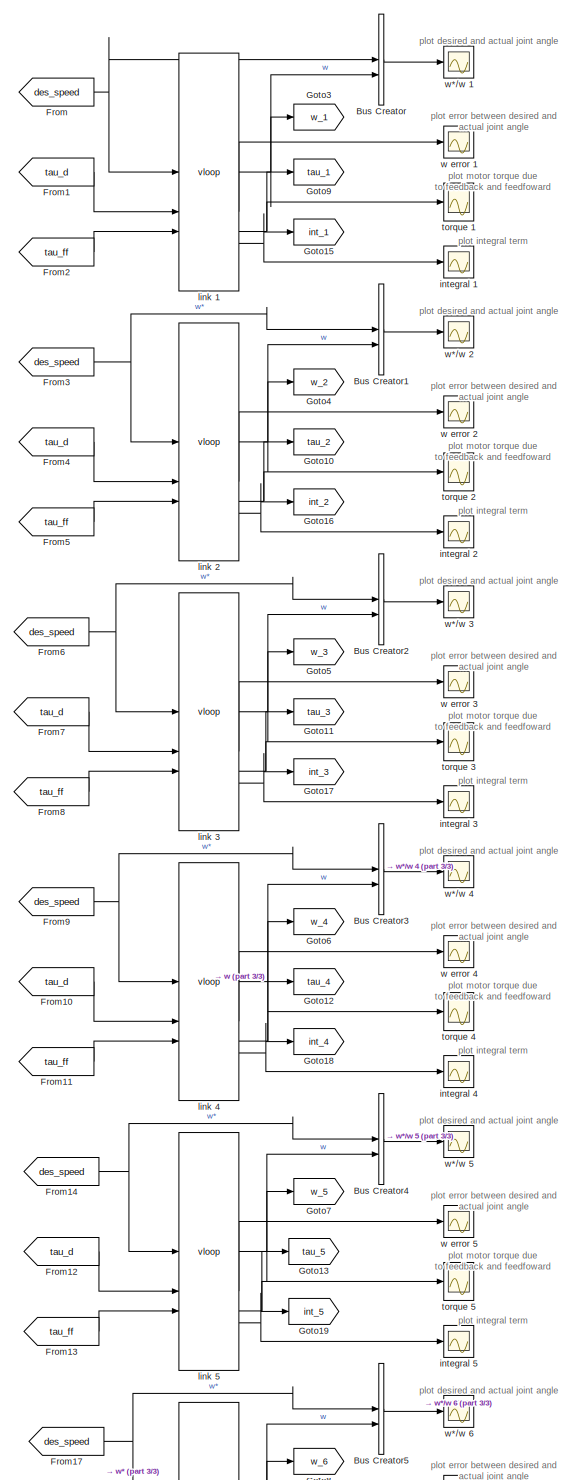
[diagram: root canvas - part 1/3, center side, full height]
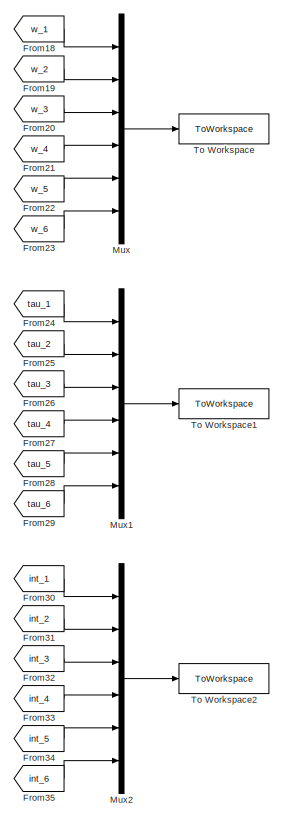
[diagram: root canvas - part 2/3, middle right region]
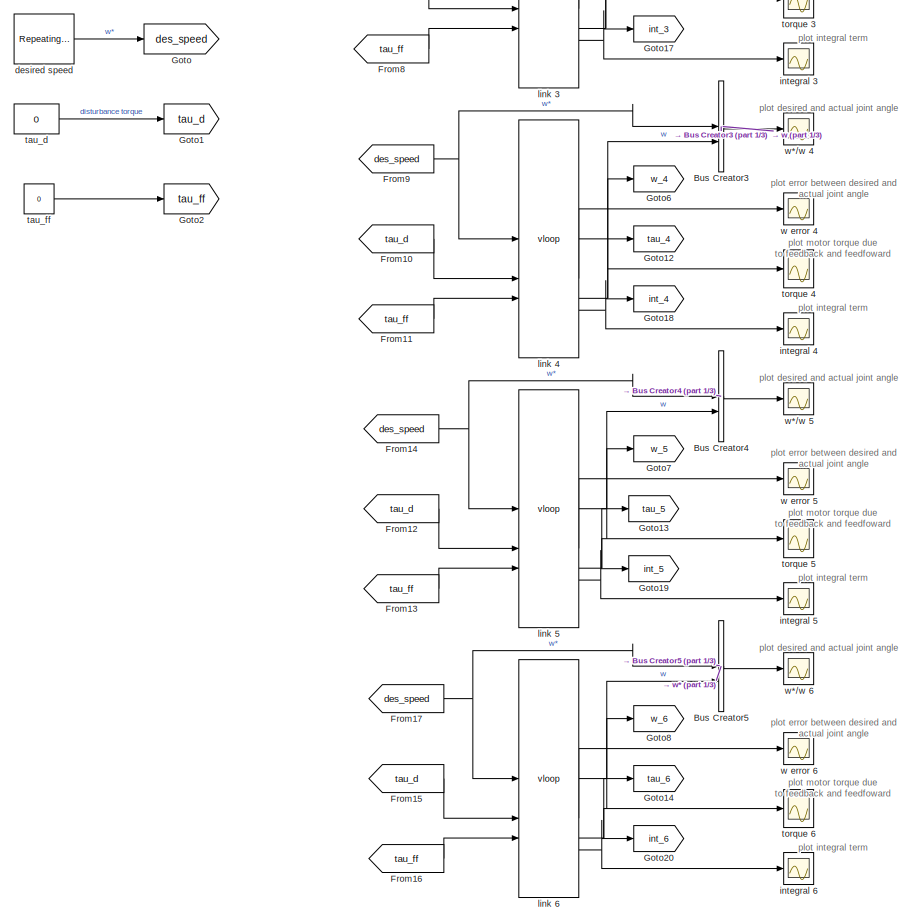
[diagram: root canvas - part 3/3, bottom center region]
MODEL slx_54b87b101818
KIND model
CONFIG AbsTol = auto
CONFIG EnableMultiTasking = on
CONFIG FixedStep = auto
CONFIG InitFcn = G = 107.815;
CONFIG MaxStep = auto
CONFIG MinStep = auto
CONFIG RelTol = 1e-3
CONFIG SampleTimeConstraint = Unconstrained
CONFIG SolverName = ode15s
CONFIG StartTime = 0.0
CONFIG StopTime = 1.0
BLOCK [BusCreator] Bus Creator
  DisplayOption = bar
  InheritFromInputs = on
  Inputs = 2
BLOCK [BusCreator] Bus Creator1
  DisplayOption = bar
  InheritFromInputs = on
  Inputs = 2
BLOCK [BusCreator] Bus Creator2
  DisplayOption = bar
  InheritFromInputs = on
  Inputs = 2
BLOCK [BusCreator] Bus Creator3
  DisplayOption = bar
  InheritFromInputs = on
  Inputs = 2
BLOCK [BusCreator] Bus Creator4
  DisplayOption = bar
  InheritFromInputs = on
  Inputs = 2
BLOCK [BusCreator] Bus Creator5
  DisplayOption = bar
  InheritFromInputs = on
  Inputs = 2
BLOCK [From] From
  GotoTag = des_speed
BLOCK [From] From1
  GotoTag = tau_d
BLOCK [From] From10
  GotoTag = tau_d
BLOCK [From] From11
  GotoTag = tau_ff
BLOCK [From] From12
  GotoTag = tau_d
BLOCK [From] From13
  GotoTag = tau_ff
BLOCK [From] From14
  GotoTag = des_speed
BLOCK [From] From15
  GotoTag = tau_d
BLOCK [From] From16
  GotoTag = tau_ff
BLOCK [From] From17
  GotoTag = des_speed
BLOCK [From] From18
  GotoTag = w_1
BLOCK [From] From19
  GotoTag = w_2
BLOCK [From] From2
  GotoTag = tau_ff
BLOCK [From] From20
  GotoTag = w_3
BLOCK [From] From21
  GotoTag = w_4
BLOCK [From] From22
  GotoTag = w_5
BLOCK [From] From23
  GotoTag = w_6
BLOCK [From] From24
  GotoTag = tau_1
BLOCK [From] From25
  GotoTag = tau_2
BLOCK [From] From26
  GotoTag = tau_3
BLOCK [From] From27
  GotoTag = tau_4
BLOCK [From] From28
  GotoTag = tau_5
BLOCK [From] From29
  GotoTag = tau_6
BLOCK [From] From3
  GotoTag = des_speed
BLOCK [From] From30
  GotoTag = int_1
BLOCK [From] From31
  GotoTag = int_2
BLOCK [From] From32
  GotoTag = int_3
BLOCK [From] From33
  GotoTag = int_4
BLOCK [From] From34
  GotoTag = int_5
BLOCK [From] From35
  GotoTag = int_6
BLOCK [From] From4
  GotoTag = tau_d
BLOCK [From] From5
  GotoTag = tau_ff
BLOCK [From] From6
  GotoTag = des_speed
BLOCK [From] From7
  GotoTag = tau_d
BLOCK [From] From8
  GotoTag = tau_ff
BLOCK [From] From9
  GotoTag = des_speed
BLOCK [Goto] Goto
  GotoTag = des_speed
BLOCK [Goto] Goto1
  GotoTag = tau_d
BLOCK [Goto] Goto10
  GotoTag = tau_2
BLOCK [Goto] Goto11
  GotoTag = tau_3
BLOCK [Goto] Goto12
  GotoTag = tau_4
BLOCK [Goto] Goto13
  GotoTag = tau_5
BLOCK [Goto] Goto14
  GotoTag = tau_6
BLOCK [Goto] Goto15
  GotoTag = int_1
BLOCK [Goto] Goto16
  GotoTag = int_2
BLOCK [Goto] Goto17
  GotoTag = int_3
BLOCK [Goto] Goto18
  GotoTag = int_4
BLOCK [Goto] Goto19
  GotoTag = int_5
BLOCK [Goto] Goto2
  GotoTag = tau_ff
BLOCK [Goto] Goto20
  GotoTag = int_6
BLOCK [Goto] Goto3
  GotoTag = w_1
BLOCK [Goto] Goto4
  GotoTag = w_2
BLOCK [Goto] Goto5
  GotoTag = w_3
BLOCK [Goto] Goto6
  GotoTag = w_4
BLOCK [Goto] Goto7
  GotoTag = w_5
BLOCK [Goto] Goto8
  GotoTag = w_6
BLOCK [Goto] Goto9
  GotoTag = tau_1
BLOCK [Mux] Mux
  DisplayOption = bar
  Inputs = 6
BLOCK [Mux] Mux1
  DisplayOption = bar
  Inputs = 6
BLOCK [Mux] Mux2
  DisplayOption = bar
  Inputs = 6
BLOCK [ToWorkspace] To Workspace
  FixptAsFi = on
  MaxDataPoints = inf
  SampleTime = -1
  SaveFormat = Timeseries
  VariableName = W
BLOCK [ToWorkspace] To Workspace1
  FixptAsFi = on
  MaxDataPoints = inf
  SampleTime = -1
  SaveFormat = Timeseries
  VariableName = TAU
BLOCK [ToWorkspace] To Workspace2
  FixptAsFi = on
  MaxDataPoints = inf
  SampleTime = -1
  SaveFormat = Timeseries
  VariableName = INT
BLOCK [Reference] desired speed  REF=simulink/Sources/Repeating
Sequence
  SourceBlock = simulink/Sources/Repeating\nSequence
  SourceType = Repeating table
BLOCK [Scope] integral 1
  Floating = off
  NumInputPorts = 1
  ScopeSpecificationString = Simulink.scopes.TimeScopeBlockCfg('CurrentConfiguration', extmgr.ConfigurationSet(extmgr.Configuration('Core','General UI',true),extmgr.Configuration('Core','Source UI',true),extmgr.Configuration('Sources','WiredSimulink',true,'DataLoggingVariableName','ScopeData3','DataLoggingSaveFormat','StructureWithTime','DataLoggingLimitDataPoints',true,'DataLoggingDecimation','1','DataLoggingDecimateData',tr...<+1770ch>
BLOCK [Scope] integral 2
  Floating = off
  NumInputPorts = 1
  ScopeSpecificationString = Simulink.scopes.TimeScopeBlockCfg('CurrentConfiguration', extmgr.ConfigurationSet(extmgr.Configuration('Core','General UI',true),extmgr.Configuration('Core','Source UI',true),extmgr.Configuration('Sources','WiredSimulink',true,'DataLoggingVariableName','ScopeData1','DataLoggingSaveFormat','StructureWithTime','DataLoggingLimitDataPoints',true,'DataLoggingDecimation','1','DataLoggingDecimateData',tr...<+1770ch>
BLOCK [Scope] integral 3
  Floating = off
  NumInputPorts = 1
  ScopeSpecificationString = Simulink.scopes.TimeScopeBlockCfg('CurrentConfiguration', extmgr.ConfigurationSet(extmgr.Configuration('Core','General UI',true),extmgr.Configuration('Core','Source UI',true),extmgr.Configuration('Sources','WiredSimulink',true,'DataLoggingVariableName','ScopeData5','DataLoggingSaveFormat','StructureWithTime','DataLoggingLimitDataPoints',true,'DataLoggingDecimation','1','DataLoggingDecimateData',tr...<+1770ch>
BLOCK [Scope] integral 4
  Floating = off
  NumInputPorts = 1
  ScopeSpecificationString = Simulink.scopes.TimeScopeBlockCfg('CurrentConfiguration', extmgr.ConfigurationSet(extmgr.Configuration('Core','General UI',true),extmgr.Configuration('Core','Source UI',true),extmgr.Configuration('Sources','WiredSimulink',true,'DataLoggingVariableName','ScopeData9','DataLoggingSaveFormat','StructureWithTime','DataLoggingLimitDataPoints',true,'DataLoggingDecimation','1','DataLoggingDecimateData',tr...<+1770ch>
BLOCK [Scope] integral 5
  Floating = off
  NumInputPorts = 1
  ScopeSpecificationString = Simulink.scopes.TimeScopeBlockCfg('CurrentConfiguration', extmgr.ConfigurationSet(extmgr.Configuration('Core','General UI',true),extmgr.Configuration('Core','Source UI',true),extmgr.Configuration('Sources','WiredSimulink',true,'DataLoggingVariableName','ScopeData13','DataLoggingSaveFormat','StructureWithTime','DataLoggingLimitDataPoints',true,'DataLoggingDecimation','1','DataLoggingDecimateData',t...<+1771ch>
BLOCK [Scope] integral 6
  Floating = off
  NumInputPorts = 1
  ScopeSpecificationString = Simulink.scopes.TimeScopeBlockCfg('CurrentConfiguration', extmgr.ConfigurationSet(extmgr.Configuration('Core','General UI',true),extmgr.Configuration('Core','Source UI',true),extmgr.Configuration('Sources','WiredSimulink',true,'DataLoggingVariableName','ScopeData17','DataLoggingSaveFormat','StructureWithTime','DataLoggingLimitDataPoints',true,'DataLoggingDecimation','1','DataLoggingDecimateData',t...<+1771ch>
BLOCK [Reference] link 1  REF=roblocks/Arm/vloop  (lib defined in mdl_2a292b13c81b, mdl_69400f8cfe22, +12 more)
  SourceBlock = roblocks/Arm/vloop
BLOCK [Reference] link 2  REF=roblocks/Arm/vloop  (lib defined in mdl_2a292b13c81b, mdl_69400f8cfe22, +12 more)
  SourceBlock = roblocks/Arm/vloop
BLOCK [Reference] link 3  REF=roblocks/Arm/vloop  (lib defined in mdl_2a292b13c81b, mdl_69400f8cfe22, +12 more)
  SourceBlock = roblocks/Arm/vloop
BLOCK [Reference] link 4  REF=roblocks/Arm/vloop  (lib defined in mdl_2a292b13c81b, mdl_69400f8cfe22, +12 more)
  SourceBlock = roblocks/Arm/vloop
BLOCK [Reference] link 5  REF=roblocks/Arm/vloop  (lib defined in mdl_2a292b13c81b, mdl_69400f8cfe22, +12 more)
  SourceBlock = roblocks/Arm/vloop
BLOCK [Reference] link 6  REF=roblocks/Arm/vloop  (lib defined in mdl_2a292b13c81b, mdl_69400f8cfe22, +12 more)
  SourceBlock = roblocks/Arm/vloop
BLOCK [Constant] tau_d
  Value = 0
BLOCK [Constant] tau_ff
  Value = 0
BLOCK [Scope] torque 1
  Floating = off
  NumInputPorts = 1
  ScopeSpecificationString = Simulink.scopes.TimeScopeBlockCfg('CurrentConfiguration', extmgr.ConfigurationSet(extmgr.Configuration('Core','General UI',true),extmgr.Configuration('Core','Source UI',true),extmgr.Configuration('Sources','WiredSimulink',true,'DataLoggingVariableName','ScopeData1','DataLoggingSaveFormat','StructureWithTime','DataLoggingLimitDataPoints',true,'DataLoggingDecimation','1','DataLoggingDecimateData',tr...<+1755ch>
BLOCK [Scope] torque 2
  Floating = off
  NumInputPorts = 1
  ScopeSpecificationString = Simulink.scopes.TimeScopeBlockCfg('CurrentConfiguration', extmgr.ConfigurationSet(extmgr.Configuration('Core','General UI',true),extmgr.Configuration('Core','Source UI',true),extmgr.Configuration('Sources','WiredSimulink',true,'DataLoggingVariableName','ScopeData2','DataLoggingSaveFormat','StructureWithTime','DataLoggingLimitDataPoints',true,'DataLoggingDecimation','1','DataLoggingDecimateData',tr...<+1755ch>
BLOCK [Scope] torque 3
  Floating = off
  NumInputPorts = 1
  ScopeSpecificationString = Simulink.scopes.TimeScopeBlockCfg('CurrentConfiguration', extmgr.ConfigurationSet(extmgr.Configuration('Core','General UI',true),extmgr.Configuration('Core','Source UI',true),extmgr.Configuration('Sources','WiredSimulink',true,'DataLoggingVariableName','ScopeData6','DataLoggingSaveFormat','StructureWithTime','DataLoggingLimitDataPoints',true,'DataLoggingDecimation','1','DataLoggingDecimateData',tr...<+1755ch>
BLOCK [Scope] torque 4
  Floating = off
  NumInputPorts = 1
  ScopeSpecificationString = Simulink.scopes.TimeScopeBlockCfg('CurrentConfiguration', extmgr.ConfigurationSet(extmgr.Configuration('Core','General UI',true),extmgr.Configuration('Core','Source UI',true),extmgr.Configuration('Sources','WiredSimulink',true,'DataLoggingVariableName','ScopeData10','DataLoggingSaveFormat','StructureWithTime','DataLoggingLimitDataPoints',true,'DataLoggingDecimation','1','DataLoggingDecimateData',t...<+1756ch>
BLOCK [Scope] torque 5
  Floating = off
  NumInputPorts = 1
  ScopeSpecificationString = Simulink.scopes.TimeScopeBlockCfg('CurrentConfiguration', extmgr.ConfigurationSet(extmgr.Configuration('Core','General UI',true),extmgr.Configuration('Core','Source UI',true),extmgr.Configuration('Sources','WiredSimulink',true,'DataLoggingVariableName','ScopeData14','DataLoggingSaveFormat','StructureWithTime','DataLoggingLimitDataPoints',true,'DataLoggingDecimation','1','DataLoggingDecimateData',t...<+1756ch>
BLOCK [Scope] torque 6
  Floating = off
  NumInputPorts = 1
  ScopeSpecificationString = Simulink.scopes.TimeScopeBlockCfg('CurrentConfiguration', extmgr.ConfigurationSet(extmgr.Configuration('Core','General UI',true),extmgr.Configuration('Core','Source UI',true),extmgr.Configuration('Sources','WiredSimulink',true,'DataLoggingVariableName','ScopeData18','DataLoggingSaveFormat','StructureWithTime','DataLoggingLimitDataPoints',true,'DataLoggingDecimation','1','DataLoggingDecimateData',t...<+1756ch>
BLOCK [Scope] w error 1
  Floating = off
  NumInputPorts = 1
  ScopeSpecificationString = Simulink.scopes.TimeScopeBlockCfg('CurrentConfiguration', extmgr.ConfigurationSet(extmgr.Configuration('Core','General UI',true),extmgr.Configuration('Core','Source UI',true),extmgr.Configuration('Sources','WiredSimulink',true,'DataLoggingVariableName','ScopeData2','DataLoggingSaveFormat','StructureWithTime','DataLoggingLimitDataPoints',true,'DataLoggingDecimation','1','DataLoggingDecimateData',tr...<+1805ch>
BLOCK [Scope] w error 2
  Floating = off
  NumInputPorts = 1
  ScopeSpecificationString = Simulink.scopes.TimeScopeBlockCfg('CurrentConfiguration', extmgr.ConfigurationSet(extmgr.Configuration('Core','General UI',true),extmgr.Configuration('Core','Source UI',true),extmgr.Configuration('Sources','WiredSimulink',true,'DataLoggingVariableName','ScopeData3','DataLoggingSaveFormat','StructureWithTime','DataLoggingLimitDataPoints',true,'DataLoggingDecimation','1','DataLoggingDecimateData',tr...<+1791ch>
BLOCK [Scope] w error 3
  Floating = off
  NumInputPorts = 1
  ScopeSpecificationString = Simulink.scopes.TimeScopeBlockCfg('CurrentConfiguration', extmgr.ConfigurationSet(extmgr.Configuration('Core','General UI',true),extmgr.Configuration('Core','Source UI',true),extmgr.Configuration('Sources','WiredSimulink',true,'DataLoggingVariableName','ScopeData7','DataLoggingSaveFormat','StructureWithTime','DataLoggingLimitDataPoints',true,'DataLoggingDecimation','1','DataLoggingDecimateData',tr...<+1805ch>
BLOCK [Scope] w error 4
  Floating = off
  NumInputPorts = 1
  ScopeSpecificationString = Simulink.scopes.TimeScopeBlockCfg('CurrentConfiguration', extmgr.ConfigurationSet(extmgr.Configuration('Core','General UI',true),extmgr.Configuration('Core','Source UI',true),extmgr.Configuration('Sources','WiredSimulink',true,'DataLoggingVariableName','ScopeData11','DataLoggingSaveFormat','StructureWithTime','DataLoggingLimitDataPoints',true,'DataLoggingDecimation','1','DataLoggingDecimateData',t...<+1804ch>
BLOCK [Scope] w error 5
  Floating = off
  NumInputPorts = 1
  ScopeSpecificationString = Simulink.scopes.TimeScopeBlockCfg('CurrentConfiguration', extmgr.ConfigurationSet(extmgr.Configuration('Core','General UI',true),extmgr.Configuration('Core','Source UI',true),extmgr.Configuration('Sources','WiredSimulink',true,'DataLoggingVariableName','ScopeData15','DataLoggingSaveFormat','StructureWithTime','DataLoggingLimitDataPoints',true,'DataLoggingDecimation','1','DataLoggingDecimateData',t...<+1781ch>
BLOCK [Scope] w error 6
  Floating = off
  NumInputPorts = 1
  ScopeSpecificationString = Simulink.scopes.TimeScopeBlockCfg('CurrentConfiguration', extmgr.ConfigurationSet(extmgr.Configuration('Core','General UI',true),extmgr.Configuration('Core','Source UI',true),extmgr.Configuration('Sources','WiredSimulink',true,'DataLoggingVariableName','ScopeData19','DataLoggingSaveFormat','StructureWithTime','DataLoggingLimitDataPoints',true,'DataLoggingDecimation','1','DataLoggingDecimateData',t...<+1806ch>
BLOCK [Scope] w*//w 1
  Floating = off
  NumInputPorts = 1
  ScopeSpecificationString = Simulink.scopes.TimeScopeBlockCfg('CurrentConfiguration', extmgr.ConfigurationSet(extmgr.Configuration('Core','General UI',true),extmgr.Configuration('Core','Source UI',true),extmgr.Configuration('Sources','WiredSimulink',true,'DataLoggingSaveFormat','StructureWithTime','DataLoggingLimitDataPoints',true,'DataLoggingDecimation','1','DataLoggingDecimateData',true),extmgr.Configuration('Visuals','Tim...<+1768ch>
BLOCK [Scope] w*//w 2
  Floating = off
  NumInputPorts = 1
  ScopeSpecificationString = Simulink.scopes.TimeScopeBlockCfg('CurrentConfiguration', extmgr.ConfigurationSet(extmgr.Configuration('Core','General UI',true),extmgr.Configuration('Core','Source UI',true),extmgr.Configuration('Sources','WiredSimulink',true,'DataLoggingSaveFormat','StructureWithTime','DataLoggingLimitDataPoints',true,'DataLoggingDecimation','1','DataLoggingDecimateData',true,'DataLoggingVariableName','ScopeData...<+1815ch>
BLOCK [Scope] w*//w 3
  Floating = off
  NumInputPorts = 1
  ScopeSpecificationString = Simulink.scopes.TimeScopeBlockCfg('CurrentConfiguration', extmgr.ConfigurationSet(extmgr.Configuration('Core','General UI',true),extmgr.Configuration('Core','Source UI',true),extmgr.Configuration('Sources','WiredSimulink',true,'DataLoggingSaveFormat','StructureWithTime','DataLoggingLimitDataPoints',true,'DataLoggingDecimation','1','DataLoggingDecimateData',true,'DataLoggingVariableName','ScopeData...<+1797ch>
BLOCK [Scope] w*//w 4
  Floating = off
  NumInputPorts = 1
  ScopeSpecificationString = Simulink.scopes.TimeScopeBlockCfg('CurrentConfiguration', extmgr.ConfigurationSet(extmgr.Configuration('Core','General UI',true),extmgr.Configuration('Core','Source UI',true),extmgr.Configuration('Sources','WiredSimulink',true,'DataLoggingSaveFormat','StructureWithTime','DataLoggingLimitDataPoints',true,'DataLoggingDecimation','1','DataLoggingDecimateData',true,'DataLoggingVariableName','ScopeData...<+1816ch>
BLOCK [Scope] w*//w 5
  Floating = off
  NumInputPorts = 1
  ScopeSpecificationString = Simulink.scopes.TimeScopeBlockCfg('CurrentConfiguration', extmgr.ConfigurationSet(extmgr.Configuration('Core','General UI',true),extmgr.Configuration('Core','Source UI',true),extmgr.Configuration('Sources','WiredSimulink',true,'DataLoggingSaveFormat','StructureWithTime','DataLoggingLimitDataPoints',true,'DataLoggingDecimation','1','DataLoggingDecimateData',true,'DataLoggingVariableName','ScopeData...<+1778ch>
BLOCK [Scope] w*//w 6
  Floating = off
  NumInputPorts = 1
  ScopeSpecificationString = Simulink.scopes.TimeScopeBlockCfg('CurrentConfiguration', extmgr.ConfigurationSet(extmgr.Configuration('Core','General UI',true),extmgr.Configuration('Core','Source UI',true),extmgr.Configuration('Sources','WiredSimulink',true,'DataLoggingSaveFormat','StructureWithTime','DataLoggingLimitDataPoints',true,'DataLoggingDecimation','1','DataLoggingDecimateData',true,'DataLoggingVariableName','ScopeData...<+1793ch>
ANNOTATION (root): plot desired and actual joint angle
ANNOTATION (root): plot error between desired and actual joint angle
ANNOTATION (root): plot integral term
ANNOTATION (root): plot motor torque due to feedback and feedfoward
LINE Bus Creator1:1 -> w*//w 2:1
LINE Bus Creator2:1 -> w*//w 3:1
LINE Bus Creator3:1 -> w*//w 4:1
LINE Bus Creator4:1 -> w*//w 5:1
LINE Bus Creator5:1 -> w*//w 6:1
LINE Bus Creator:1 -> w*//w 1:1
LINE From10:1 -> link 4:2
LINE From11:1 -> link 4:3
LINE From12:1 -> link 5:2
LINE From13:1 -> link 5:3
NET From14:1 -> Bus Creator4:1, link 5:1
LINE From15:1 -> link 6:2
LINE From16:1 -> link 6:3
NET From17:1 -> Bus Creator5:1, link 6:1
LINE From18:1 -> Mux:1
LINE From19:1 -> Mux:2
LINE From1:1 -> link 1:2
LINE From20:1 -> Mux:3
LINE From21:1 -> Mux:4
LINE From22:1 -> Mux:5
LINE From23:1 -> Mux:6
LINE From24:1 -> Mux1:1
LINE From25:1 -> Mux1:2
LINE From26:1 -> Mux1:3
LINE From27:1 -> Mux1:4
LINE From28:1 -> Mux1:5
LINE From29:1 -> Mux1:6
LINE From2:1 -> link 1:3
LINE From30:1 -> Mux2:1
LINE From31:1 -> Mux2:2
LINE From32:1 -> Mux2:3
LINE From33:1 -> Mux2:4
LINE From34:1 -> Mux2:5
LINE From35:1 -> Mux2:6
NET From3:1 -> Bus Creator1:1, link 2:1
LINE From4:1 -> link 2:2
LINE From5:1 -> link 2:3
NET From6:1 -> Bus Creator2:1, link 3:1
LINE From7:1 -> link 3:2
LINE From8:1 -> link 3:3
NET From9:1 -> Bus Creator3:1, link 4:1
NET From:1 -> Bus Creator:1, link 1:1
LINE Mux1:1 -> To Workspace1:1
LINE Mux2:1 -> To Workspace2:1
LINE Mux:1 -> To Workspace:1
LINE desired speed:1 -> Goto:1
NET link 1:1 -> Bus Creator:2, Goto3:1
LINE link 1:2 -> w error 1:1
NET link 1:3 -> Goto9:1, torque 1:1
NET link 1:4 -> Goto15:1, integral 1:1
NET link 2:1 -> Bus Creator1:2, Goto4:1
LINE link 2:2 -> w error 2:1
NET link 2:3 -> Goto10:1, torque 2:1
NET link 2:4 -> Goto16:1, integral 2:1
NET link 3:1 -> Bus Creator2:2, Goto5:1
LINE link 3:2 -> w error 3:1
NET link 3:3 -> Goto11:1, torque 3:1
NET link 3:4 -> Goto17:1, integral 3:1
NET link 4:1 -> Bus Creator3:2, Goto6:1
LINE link 4:2 -> w error 4:1
NET link 4:3 -> Goto12:1, torque 4:1
NET link 4:4 -> Goto18:1, integral 4:1
NET link 5:1 -> Bus Creator4:2, Goto7:1
LINE link 5:2 -> w error 5:1
NET link 5:3 -> Goto13:1, torque 5:1
NET link 5:4 -> Goto19:1, integral 5:1
NET link 6:1 -> Bus Creator5:2, Goto8:1
LINE link 6:2 -> w error 6:1
NET link 6:3 -> Goto14:1, torque 6:1
NET link 6:4 -> Goto20:1, integral 6:1
LINE tau_d:1 -> Goto1:1
LINE tau_ff:1 -> Goto2:1
note: NET lines group one-source signal fan-out (src -> all destinations, sorted); 1:1 wires keep LINE
